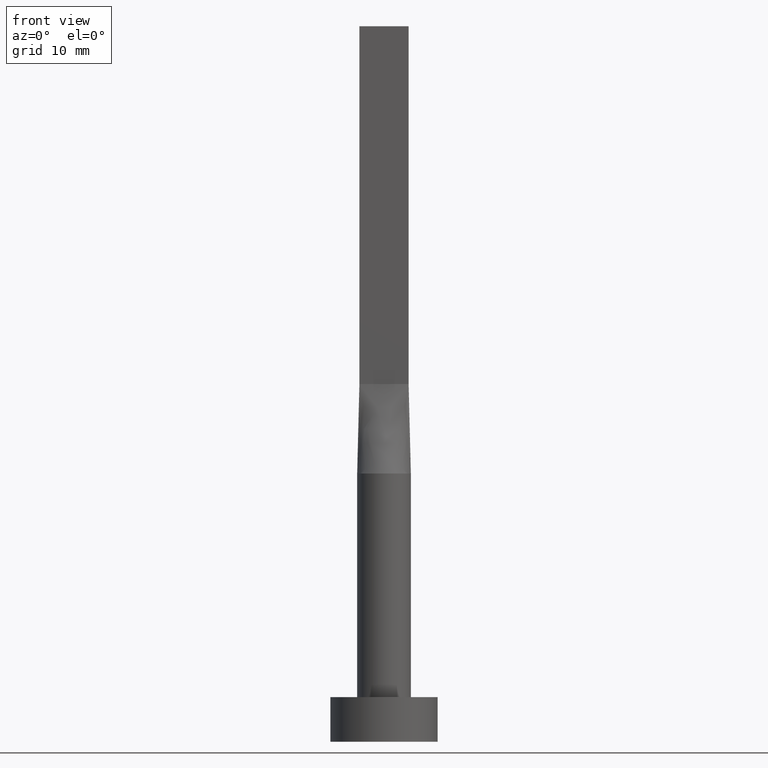
[diagram: clean part render]
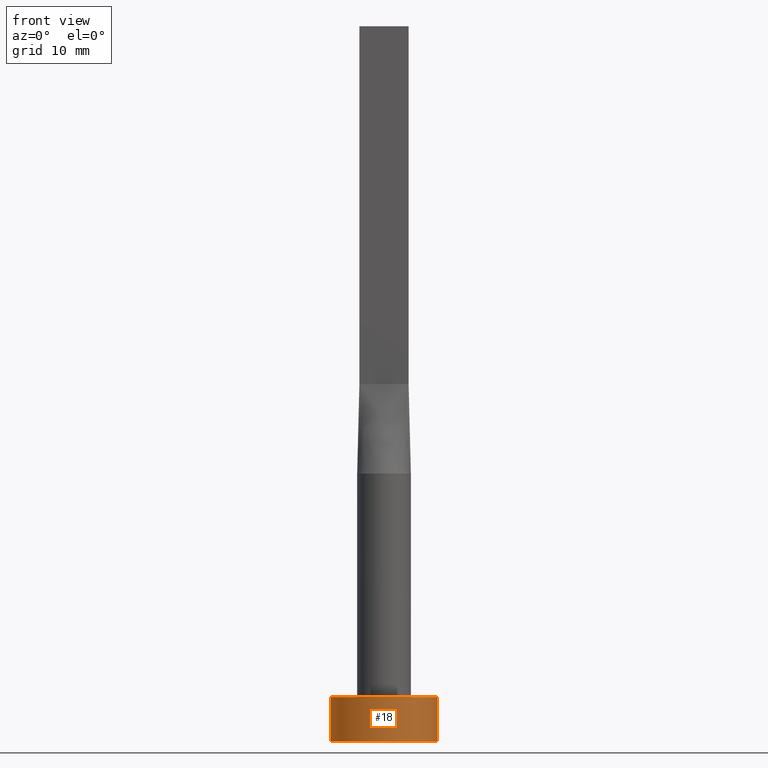
[diagram: same view with one face highlighted and labeled with its STEP entity id]
A machine part, front view. The second image highlights one B-rep face of the part: STEP entity #18.
In plain terms, the highlighted cylindrical surface (partial cylindrical patch) has radius 6 mm, axis along (-0, -0, -1).
Its self-contained STEP definition (entity closure, byte-faithful):
#16 = DIRECTION ( 'NONE',  ( 1.000000000000000000, 0.000000000000000000, 0.000000000000000000 ) ) ;
#18 = ADVANCED_FACE ( 'NONE', ( #171 ), #348, .T. ) ;
#33 = DIRECTION ( 'NONE',  ( -0.000000000000000000, -0.000000000000000000, -1.000000000000000000 ) ) ;
#36 = EDGE_CURVE ( 'NONE', #338, #280, #533, .T. ) ;
#46 = LINE ( 'NONE', #181, #382 ) ;
#60 = VECTOR ( 'NONE', #365, 1000.000000000000000 ) ;
#69 = DIRECTION ( 'NONE',  ( 1.000000000000000000, 0.000000000000000000, 0.000000000000000000 ) ) ;
#74 = ORIENTED_EDGE ( 'NONE', *, *, #504, .F. ) ;
#98 = CARTESIAN_POINT ( 'NONE',  ( -6.000000000000000888, 0.000000000000000000, 0.000000000000000000 ) ) ;
#102 = LINE ( 'NONE', #378, #60 ) ;
#106 = EDGE_CURVE ( 'NONE', #568, #338, #102, .T. ) ;
#143 = CARTESIAN_POINT ( 'NONE',  ( 0.000000000000000000, 0.000000000000000000, 0.000000000000000000 ) ) ;
#168 = EDGE_CURVE ( 'NONE', #568, #270, #459, .T. ) ;
#171 = FACE_OUTER_BOUND ( 'NONE', #369, .T. ) ;
#181 = CARTESIAN_POINT ( 'NONE',  ( 6.000000000000000888, 7.347880794884120722E-16, 5.000000000000000000 ) ) ;
#196 = DIRECTION ( 'NONE',  ( -1.000000000000000000, 0.000000000000000000, 0.000000000000000000 ) ) ;
#240 = ORIENTED_EDGE ( 'NONE', *, *, #36, .T. ) ;
#246 = AXIS2_PLACEMENT_3D ( 'NONE', #293, #252, #69 ) ;
#252 = DIRECTION ( 'NONE',  ( 0.000000000000000000, 0.000000000000000000, 1.000000000000000000 ) ) ;
#263 = ORIENTED_EDGE ( 'NONE', *, *, #106, .T. ) ;
#270 = VERTEX_POINT ( 'NONE', #417 ) ;
#280 = VERTEX_POINT ( 'NONE', #553 ) ;
#293 = CARTESIAN_POINT ( 'NONE',  ( 0.000000000000000000, 0.000000000000000000, 5.000000000000000000 ) ) ;
#336 = AXIS2_PLACEMENT_3D ( 'NONE', #521, #33, #196 ) ;
#338 = VERTEX_POINT ( 'NONE', #98 ) ;
#348 = CYLINDRICAL_SURFACE ( 'NONE', #336, 6.000000000000000888 ) ;
#365 = DIRECTION ( 'NONE',  ( -0.000000000000000000, -0.000000000000000000, -1.000000000000000000 ) ) ;
#369 = EDGE_LOOP ( 'NONE', ( #74, #398, #263, #240 ) ) ;
#378 = CARTESIAN_POINT ( 'NONE',  ( -6.000000000000000888, 0.000000000000000000, 5.000000000000000000 ) ) ;
#382 = VECTOR ( 'NONE', #396, 1000.000000000000000 ) ;
#396 = DIRECTION ( 'NONE',  ( -0.000000000000000000, -0.000000000000000000, -1.000000000000000000 ) ) ;
#398 = ORIENTED_EDGE ( 'NONE', *, *, #168, .F. ) ;
#417 = CARTESIAN_POINT ( 'NONE',  ( 6.000000000000000888, 7.347880794884120722E-16, 5.000000000000000000 ) ) ;
#454 = CARTESIAN_POINT ( 'NONE',  ( -6.000000000000000888, 0.000000000000000000, 5.000000000000000000 ) ) ;
#459 = CIRCLE ( 'NONE', #246, 6.000000000000000888 ) ;
#483 = AXIS2_PLACEMENT_3D ( 'NONE', #143, #547, #16 ) ;
#504 = EDGE_CURVE ( 'NONE', #270, #280, #46, .T. ) ;
#521 = CARTESIAN_POINT ( 'NONE',  ( 0.000000000000000000, 0.000000000000000000, 5.000000000000000000 ) ) ;
#533 = CIRCLE ( 'NONE', #483, 6.000000000000000888 ) ;
#547 = DIRECTION ( 'NONE',  ( 0.000000000000000000, 0.000000000000000000, 1.000000000000000000 ) ) ;
#553 = CARTESIAN_POINT ( 'NONE',  ( 6.000000000000000888, 7.347880794884120722E-16, 0.000000000000000000 ) ) ;
#568 = VERTEX_POINT ( 'NONE', #454 ) ;